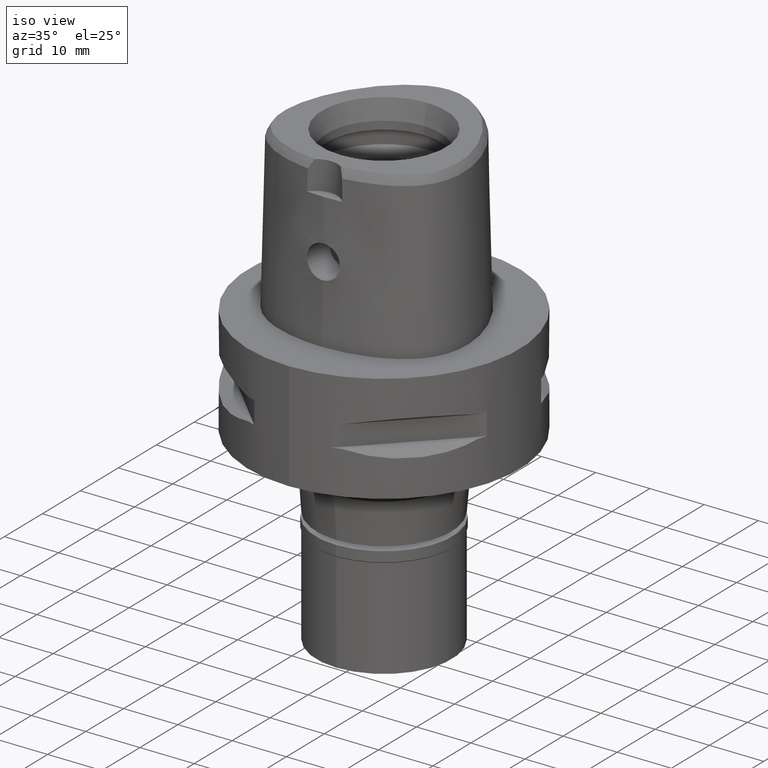
[diagram: clean part render]
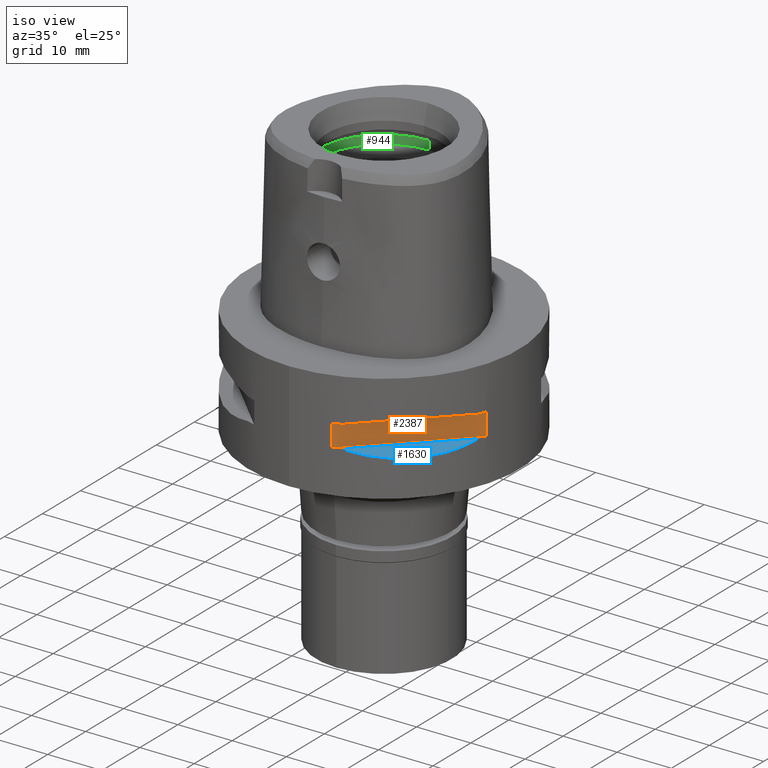
[diagram: same view with three faces highlighted in distinct colors, each labeled with its STEP entity id]
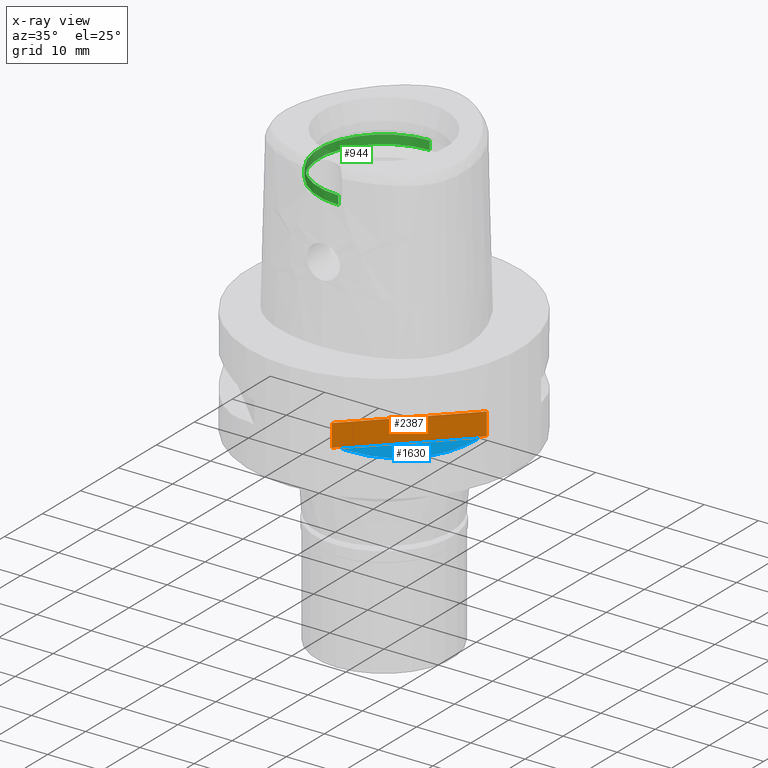
[diagram: x-ray of the same camera — body ghosted, the three highlighted faces saturated]
A machine part, iso view with three faces highlighted in distinct colors.
The next image is the same camera in x-ray (body ghosted, the three faces saturated) — at least one of them is partly hidden behind the body in this view.
Their STEP definitions:

[orange] entity #2387 — the highlighted planar face has unit normal (-0.7071, 0.7071, 0).
#109 = EDGE_CURVE ( 'NONE', #660, #3847, #1120, .T. ) ;
#373 = DIRECTION ( 'NONE',  ( 0.0000000000000000000, 0.0000000000000000000, 1.000000000000000000 ) ) ;
#619 = VECTOR ( 'NONE', #4507, 1000.000000000000000 ) ;
#660 = VERTEX_POINT ( 'NONE', #2504 ) ;
#746 = DIRECTION ( 'NONE',  ( 0.0000000000000000000, 0.0000000000000000000, -1.000000000000000000 ) ) ;
#821 = EDGE_CURVE ( 'NONE', #3847, #3135, #3885, .T. ) ;
#1067 = CARTESIAN_POINT ( 'NONE',  ( 23.95277699797999915, -7.159921374230999724, -7.950000000000000178 ) ) ;
#1120 = LINE ( 'NONE', #1485, #1707 ) ;
#1143 = CARTESIAN_POINT ( 'NONE',  ( 26.16295090389999700, -4.949747468305999654, -7.950000000000000178 ) ) ;
#1224 = VECTOR ( 'NONE', #2760, 1000.000000000000114 ) ;
#1301 = CARTESIAN_POINT ( 'NONE',  ( 7.159921374230999724, -23.95277699797999915, -7.950000000000000178 ) ) ;
#1477 = AXIS2_PLACEMENT_3D ( 'NONE', #1143, #3673, #373 ) ;
#1485 = CARTESIAN_POINT ( 'NONE',  ( 7.159921374230999724, -23.95277699797999915, -7.950000000000000178 ) ) ;
#1581 = LINE ( 'NONE', #1301, #1224 ) ;
#1707 = VECTOR ( 'NONE', #746, 1000.000000000000000 ) ;
#2048 = CARTESIAN_POINT ( 'NONE',  ( 7.159921374230999724, -23.95277699797999915, -12.05000000000000071 ) ) ;
#2061 = EDGE_LOOP ( 'NONE', ( #4671, #4634, #4000, #2288 ) ) ;
#2175 = PLANE ( 'NONE',  #1477 ) ;
#2288 = ORIENTED_EDGE ( 'NONE', *, *, #4510, .T. ) ;
#2387 = ADVANCED_FACE ( 'NONE', ( #2983 ), #2175, .F. ) ;
#2393 = CARTESIAN_POINT ( 'NONE',  ( 23.95277699797999915, -7.159921374230999724, -12.05000000000000071 ) ) ;
#2417 = CARTESIAN_POINT ( 'NONE',  ( 23.95277699797999915, -7.159921374235000080, -12.05000000000000071 ) ) ;
#2504 = CARTESIAN_POINT ( 'NONE',  ( 7.159921374235000080, -23.95277699797999915, -7.950000000000000178 ) ) ;
#2518 = VERTEX_POINT ( 'NONE', #1067 ) ;
#2760 = DIRECTION ( 'NONE',  ( 0.7071067811865474617, 0.7071067811865474617, 0.0000000000000000000 ) ) ;
#2780 = DIRECTION ( 'NONE',  ( 0.7071067811865474617, 0.7071067811865474617, 0.0000000000000000000 ) ) ;
#2804 = LINE ( 'NONE', #2393, #619 ) ;
#2983 = FACE_OUTER_BOUND ( 'NONE', #2061, .T. ) ;
#3135 = VERTEX_POINT ( 'NONE', #2417 ) ;
#3296 = EDGE_CURVE ( 'NONE', #660, #2518, #1581, .T. ) ;
#3673 = DIRECTION ( 'NONE',  ( -0.7071067811865475727, 0.7071067811865475727, 0.0000000000000000000 ) ) ;
#3744 = CARTESIAN_POINT ( 'NONE',  ( 7.159921374230999724, -23.95277699797999915, -12.05000000000000071 ) ) ;
#3798 = VECTOR ( 'NONE', #2780, 1000.000000000000114 ) ;
#3847 = VERTEX_POINT ( 'NONE', #3744 ) ;
#3885 = LINE ( 'NONE', #2048, #3798 ) ;
#4000 = ORIENTED_EDGE ( 'NONE', *, *, #821, .T. ) ;
#4507 = DIRECTION ( 'NONE',  ( 0.0000000000000000000, 0.0000000000000000000, 1.000000000000000000 ) ) ;
#4510 = EDGE_CURVE ( 'NONE', #3135, #2518, #2804, .T. ) ;
#4634 = ORIENTED_EDGE ( 'NONE', *, *, #109, .T. ) ;
#4671 = ORIENTED_EDGE ( 'NONE', *, *, #3296, .F. ) ;

[blue] entity #1630 — the highlighted planar face has unit normal (-0.3536, 0.3536, -0.866).
#62 = CARTESIAN_POINT ( 'NONE',  ( 13.48572973711064193, -21.05082155772163688, -13.04323036965292637 ) ) ;
#94 = EDGE_CURVE ( 'NONE', #1290, #2641, #3507, .T. ) ;
#150 = EDGE_LOOP ( 'NONE', ( #4176, #2251 ) ) ;
#412 = AXIS2_PLACEMENT_3D ( 'NONE', #714, #1493, #1109 ) ;
#417 = CARTESIAN_POINT ( 'NONE',  ( 23.45715880140000209, -8.646484890751999330, -12.05000000000000071 ) ) ;
#435 = CARTESIAN_POINT ( 'NONE',  ( 20.97251445226583755, -13.60713573003076071, -13.06082541678112641 ) ) ;
#714 = CARTESIAN_POINT ( 'NONE',  ( 26.65842356386999867, -5.445220128276999638, -12.05000000000000071 ) ) ;
#769 = CARTESIAN_POINT ( 'NONE',  ( 19.18226349639588690, -16.07509500018327131, -13.33749867752016449 ) ) ;
#797 = CARTESIAN_POINT ( 'NONE',  ( 20.11654071402723432, -14.85488513038430192, -13.22076716108491290 ) ) ;
#1109 = DIRECTION ( 'NONE',  ( -0.9258200997725358761, 0.0000000000000000000, 0.3779644730092654448 ) ) ;
#1136 = CARTESIAN_POINT ( 'NONE',  ( 8.646484890753999508, -23.45715880140000209, -12.05000000000000071 ) ) ;
#1204 = CARTESIAN_POINT ( 'NONE',  ( 10.78455809745186755, -22.58788056562029922, -12.56798337782941566 ) ) ;
#1290 = VERTEX_POINT ( 'NONE', #3842 ) ;
#1463 = CARTESIAN_POINT ( 'NONE',  ( 20.56020460723486565, -14.22535762328174691, -13.14488865845287080 ) ) ;
#1493 = DIRECTION ( 'NONE',  ( -0.3535533905933049836, 0.3535533905933054277, -0.8660254037844130615 ) ) ;
#1505 = CARTESIAN_POINT ( 'NONE',  ( 20.95817024473895174, -13.62920640916654591, -13.06397973560678061 ) ) ;
#1526 = CARTESIAN_POINT ( 'NONE',  ( 20.77616787493668937, -13.90573822667970916, -13.10257122103325145 ) ) ;
#1630 = ADVANCED_FACE ( 'NONE', ( #3678 ), #4389, .F. ) ;
#1831 = CARTESIAN_POINT ( 'NONE',  ( 13.53433973752400554, -21.01958685664054372, -13.05032380590162333 ) ) ;
#1876 = CARTESIAN_POINT ( 'NONE',  ( 12.20403021317722292, -21.82791133048418786, -12.83722430138600323 ) ) ;
#2194 = CARTESIAN_POINT ( 'NONE',  ( 13.24197703503267931, -21.20561591939681634, -13.00691327926098495 ) ) ;
#2251 = ORIENTED_EDGE ( 'NONE', *, *, #94, .T. ) ;
#2266 = CARTESIAN_POINT ( 'NONE',  ( 15.06560254765663132, -20.02826730455345583, -13.27075471794622885 ) ) ;
#2641 = VERTEX_POINT ( 'NONE', #3957 ) ;
#2676 = CARTESIAN_POINT ( 'NONE',  ( 12.89853354821786624, -21.41803043592453548, -12.95342092614003349 ) ) ;
#2795 = EDGE_CURVE ( 'NONE', #1290, #2641, #3803, .T. ) ;
#2956 = CARTESIAN_POINT ( 'NONE',  ( 21.99328990740119139, -12.03062603421341770, -12.83394786307044022 ) ) ;
#2978 = CARTESIAN_POINT ( 'NONE',  ( 16.43106916202457057, -18.92421359264944769, -13.37747608848233760 ) ) ;
#2995 = DIRECTION ( 'NONE',  ( 0.7071067811865474617, 0.7071067811865474617, 0.0000000000000000000 ) ) ;
#3018 = CARTESIAN_POINT ( 'NONE',  ( 18.30096971348435630, -17.05439749817190176, -13.37751056790094850 ) ) ;
#3316 = CARTESIAN_POINT ( 'NONE',  ( 13.55971422200820520, -21.00321793043535479, -13.05400030967370206 ) ) ;
#3339 = CARTESIAN_POINT ( 'NONE',  ( 8.646484890756999775, -23.45715880140000209, -12.05000000000000071 ) ) ;
#3507 = B_SPLINE_CURVE_WITH_KNOTS ( 'NONE', 3,
 ( #3339, #4090, #1204, #1876, #2676, #2194, #3668, #62, #1831, #3316, #2266, #2978, #3018, #769, #797, #1463, #1526, #4114, #3708, #1505, #435, #2956, #4405, #417 ),
 .UNSPECIFIED., .F., .F.,
 ( 4, 1, 1, 1, 1, 1, 2, 2, 2, 1, 1, 1, 1, 1, 2, 2, 4 ),
 ( 0.0000000000000000000, 0.1250000000000068834, 0.1875000000000101308, 0.2187500000000117406, 0.2343750000000125733, 0.2421875000000129341, 0.2460937500000130174, 0.2500000000000131006, 0.5000000000000111022, 0.6250000000000101030, 0.6875000000000099920, 0.7187500000000099920, 0.7343750000000099920, 0.7421875000000098810, 0.7460937500000098810, 0.7500000000000098810, 1.000000000000000000 ),
 .UNSPECIFIED. ) ;
#3668 = CARTESIAN_POINT ( 'NONE',  ( 13.41274673326371314, -21.09754014382099285, -13.03250796600744721 ) ) ;
#3678 = FACE_OUTER_BOUND ( 'NONE', #150, .T. ) ;
#3708 = CARTESIAN_POINT ( 'NONE',  ( 20.92801700160322298, -13.67544437571097404, -13.07054629644096444 ) ) ;
#3803 = LINE ( 'NONE', #1136, #4247 ) ;
#3842 = CARTESIAN_POINT ( 'NONE',  ( 8.646484890756999775, -23.45715880140000209, -12.05000000000000071 ) ) ;
#3957 = CARTESIAN_POINT ( 'NONE',  ( 23.45715880140000209, -8.646484890751999330, -12.05000000000000071 ) ) ;
#4090 = CARTESIAN_POINT ( 'NONE',  ( 9.515641234297431694, -23.13678124605150188, -12.27403800212630536 ) ) ;
#4114 = CARTESIAN_POINT ( 'NONE',  ( 20.88268233906207172, -13.74471461761599400, -13.08031795579753087 ) ) ;
#4176 = ORIENTED_EDGE ( 'NONE', *, *, #2795, .F. ) ;
#4247 = VECTOR ( 'NONE', #2995, 1000.000000000000114 ) ;
#4389 = PLANE ( 'NONE',  #412 ) ;
#4405 = CARTESIAN_POINT ( 'NONE',  ( 22.81626994452193458, -10.38516041956038727, -12.49816953211166037 ) ) ;

[green] entity #944 — the highlighted cylindrical surface (partial cylindrical patch) has radius 12 mm, axis along (0, 0, -1).
#247 = FACE_OUTER_BOUND ( 'NONE', #509, .T. ) ;
#253 = AXIS2_PLACEMENT_3D ( 'NONE', #1489, #3302, #3735 ) ;
#257 = ORIENTED_EDGE ( 'NONE', *, *, #2336, .T. ) ;
#274 = DIRECTION ( 'NONE',  ( 0.0000000000000000000, -1.000000000000000000, 0.0000000000000000000 ) ) ;
#509 = EDGE_LOOP ( 'NONE', ( #4606, #2749, #257, #913 ) ) ;
#563 = CARTESIAN_POINT ( 'NONE',  ( 0.0000000000000000000, 1.483659597167000164E-14, 21.89999999999999858 ) ) ;
#613 = VERTEX_POINT ( 'NONE', #3633 ) ;
#747 = VERTEX_POINT ( 'NONE', #3454 ) ;
#913 = ORIENTED_EDGE ( 'NONE', *, *, #1604, .F. ) ;
#944 = ADVANCED_FACE ( 'NONE', ( #247 ), #3865, .F. ) ;
#987 = CARTESIAN_POINT ( 'NONE',  ( 0.0000000000000000000, 1.610410540878999754E-14, 31.50000000000000000 ) ) ;
#1264 = CARTESIAN_POINT ( 'NONE',  ( 0.0000000000000000000, 12.00000000000000000, 21.89999999999999858 ) ) ;
#1294 = DIRECTION ( 'NONE',  ( 0.0000000000000000000, 0.0000000000000000000, 1.000000000000000000 ) ) ;
#1378 = DIRECTION ( 'NONE',  ( 0.0000000000000000000, 0.0000000000000000000, -1.000000000000000000 ) ) ;
#1388 = AXIS2_PLACEMENT_3D ( 'NONE', #563, #2030, #1658 ) ;
#1489 = CARTESIAN_POINT ( 'NONE',  ( 0.0000000000000000000, 1.512438796946999906E-14, 23.50000000000000000 ) ) ;
#1604 = EDGE_CURVE ( 'NONE', #613, #2146, #2221, .T. ) ;
#1658 = DIRECTION ( 'NONE',  ( 0.0000000000000000000, -1.000000000000000000, 0.0000000000000000000 ) ) ;
#1795 = AXIS2_PLACEMENT_3D ( 'NONE', #987, #1378, #274 ) ;
#1978 = VERTEX_POINT ( 'NONE', #1264 ) ;
#2030 = DIRECTION ( 'NONE',  ( 0.0000000000000000000, 0.0000000000000000000, -1.000000000000000000 ) ) ;
#2035 = CARTESIAN_POINT ( 'NONE',  ( 0.0000000000000000000, -12.00000000000000000, 23.50000000000000000 ) ) ;
#2146 = VERTEX_POINT ( 'NONE', #2035 ) ;
#2221 = LINE ( 'NONE', #3697, #2503 ) ;
#2336 = EDGE_CURVE ( 'NONE', #747, #2146, #2337, .T. ) ;
#2337 = CIRCLE ( 'NONE', #253, 12.00000000000000000 ) ;
#2471 = CIRCLE ( 'NONE', #1388, 12.00000000000000000 ) ;
#2503 = VECTOR ( 'NONE', #3325, 1000.000000000000000 ) ;
#2749 = ORIENTED_EDGE ( 'NONE', *, *, #3118, .T. ) ;
#2801 = LINE ( 'NONE', #3113, #4022 ) ;
#3113 = CARTESIAN_POINT ( 'NONE',  ( 0.0000000000000000000, 12.00000000000000000, 21.89999999999999858 ) ) ;
#3118 = EDGE_CURVE ( 'NONE', #1978, #747, #2801, .T. ) ;
#3302 = DIRECTION ( 'NONE',  ( 0.0000000000000000000, 0.0000000000000000000, 1.000000000000000000 ) ) ;
#3325 = DIRECTION ( 'NONE',  ( 0.0000000000000000000, 0.0000000000000000000, 1.000000000000000000 ) ) ;
#3454 = CARTESIAN_POINT ( 'NONE',  ( 0.0000000000000000000, 12.00000000000000000, 23.50000000000000000 ) ) ;
#3633 = CARTESIAN_POINT ( 'NONE',  ( 0.0000000000000000000, -12.00000000000000000, 21.89999999999999858 ) ) ;
#3697 = CARTESIAN_POINT ( 'NONE',  ( 0.0000000000000000000, -12.00000000000000000, 21.89999999999999858 ) ) ;
#3735 = DIRECTION ( 'NONE',  ( 0.0000000000000000000, 1.000000000000000000, 0.0000000000000000000 ) ) ;
#3865 = CYLINDRICAL_SURFACE ( 'NONE', #1795, 12.00000000000000000 ) ;
#4022 = VECTOR ( 'NONE', #1294, 1000.000000000000000 ) ;
#4461 = EDGE_CURVE ( 'NONE', #613, #1978, #2471, .T. ) ;
#4606 = ORIENTED_EDGE ( 'NONE', *, *, #4461, .T. ) ;